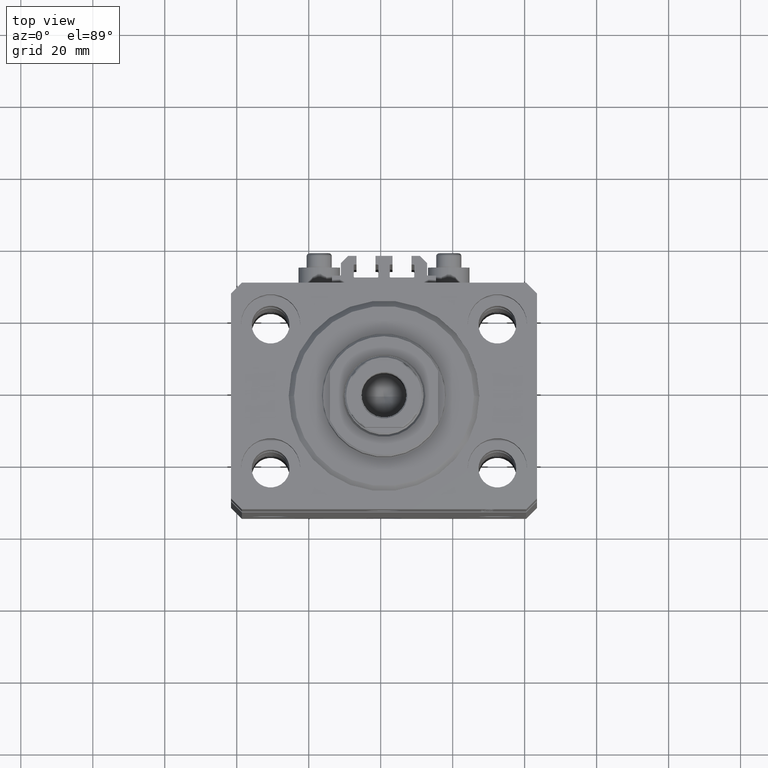
[diagram: clean part render]
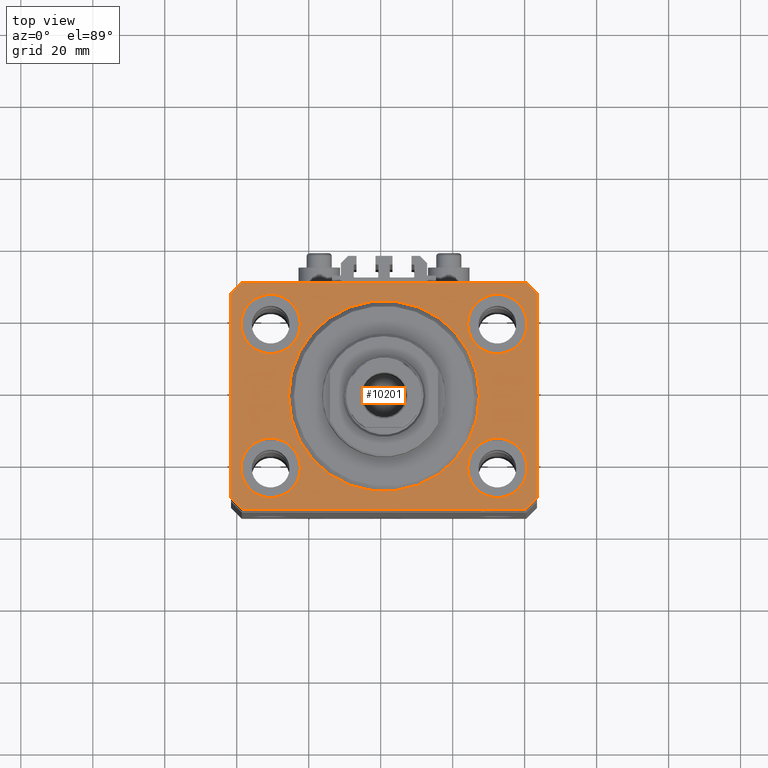
[diagram: same view with one face highlighted and labeled with its STEP entity id]
A machine part, top view. The second image highlights one B-rep face of the part: STEP entity #10201.
In plain terms, the highlighted planar face has unit normal (0, 0, 1).
Its self-contained STEP definition (entity closure, byte-faithful):
#136 = EDGE_CURVE ( 'NONE', #38953, #19884, #35406, .T. ) ;
#628 = EDGE_CURVE ( 'NONE', #9262, #30625, #28419, .T. ) ;
#698 = VERTEX_POINT ( 'NONE', #37336 ) ;
#746 = VECTOR ( 'NONE', #24726, 1000.000000000000000 ) ;
#1323 = AXIS2_PLACEMENT_3D ( 'NONE', #46630, #40030, #32746 ) ;
#1625 = CARTESIAN_POINT ( 'NONE',  ( 31.50000000000000000, -20.00000000000000000, 0.000000000000000000 ) ) ;
#1717 = CARTESIAN_POINT ( 'NONE',  ( -42.50000000000000000, 28.50000000000000000, 0.000000000000000000 ) ) ;
#1783 = DIRECTION ( 'NONE',  ( 1.000000000000000000, 0.000000000000000000, 0.000000000000000000 ) ) ;
#1928 = LINE ( 'NONE', #9239, #36203 ) ;
#1996 = AXIS2_PLACEMENT_3D ( 'NONE', #7180, #47554, #10353 ) ;
#2219 = VERTEX_POINT ( 'NONE', #18983 ) ;
#2359 = CARTESIAN_POINT ( 'NONE',  ( -42.50000000000000000, -28.50000000000000000, 0.000000000000000000 ) ) ;
#2414 = CARTESIAN_POINT ( 'NONE',  ( -42.50000000000000000, 28.50000000000000000, 0.000000000000000000 ) ) ;
#3054 = CARTESIAN_POINT ( 'NONE',  ( -31.50000000000000000, -20.00000000000000000, 0.000000000000000000 ) ) ;
#3258 = LINE ( 'NONE', #13517, #35400 ) ;
#4045 = EDGE_CURVE ( 'NONE', #2219, #34801, #41517, .T. ) ;
#4282 = AXIS2_PLACEMENT_3D ( 'NONE', #16449, #34701, #13529 ) ;
#4837 = DIRECTION ( 'NONE',  ( 1.000000000000000000, 0.000000000000000000, 0.000000000000000000 ) ) ;
#4979 = EDGE_LOOP ( 'NONE', ( #18984, #31211 ) ) ;
#5099 = CIRCLE ( 'NONE', #4282, 8.249999999999992895 ) ;
#5193 = CIRCLE ( 'NONE', #1323, 8.249999999999992895 ) ;
#5458 = EDGE_LOOP ( 'NONE', ( #38233, #42775 ) ) ;
#5701 = ORIENTED_EDGE ( 'NONE', *, *, #628, .F. ) ;
#5742 = EDGE_LOOP ( 'NONE', ( #14436, #44609 ) ) ;
#6014 = LINE ( 'NONE', #2359, #746 ) ;
#6138 = EDGE_CURVE ( 'NONE', #33075, #17362, #30519, .T. ) ;
#6682 = AXIS2_PLACEMENT_3D ( 'NONE', #17817, #32186, #21217 ) ;
#6954 = CIRCLE ( 'NONE', #17854, 8.250000000000000000 ) ;
#7103 = VERTEX_POINT ( 'NONE', #44895 ) ;
#7180 = CARTESIAN_POINT ( 'NONE',  ( 0.000000000000000000, 0.000000000000000000, 0.000000000000000000 ) ) ;
#7654 = ORIENTED_EDGE ( 'NONE', *, *, #4045, .T. ) ;
#7656 = CARTESIAN_POINT ( 'NONE',  ( 26.50000000000000355, 0.000000000000000000, 0.000000000000000000 ) ) ;
#7724 = EDGE_CURVE ( 'NONE', #11827, #45693, #36161, .T. ) ;
#7799 = FACE_BOUND ( 'NONE', #5458, .T. ) ;
#7828 = EDGE_LOOP ( 'NONE', ( #45805, #24117, #10733, #27637, #47227, #8619, #7654, #42424 ) ) ;
#7996 = DIRECTION ( 'NONE',  ( 0.000000000000000000, 0.000000000000000000, 1.000000000000000000 ) ) ;
#8518 = FACE_OUTER_BOUND ( 'NONE', #7828, .T. ) ;
#8619 = ORIENTED_EDGE ( 'NONE', *, *, #14311, .T. ) ;
#8668 = AXIS2_PLACEMENT_3D ( 'NONE', #9572, #24870, #1783 ) ;
#8802 = CARTESIAN_POINT ( 'NONE',  ( -31.50000000000000000, 20.00000000000000000, 0.000000000000000000 ) ) ;
#9239 = CARTESIAN_POINT ( 'NONE',  ( 39.50000000000000711, -31.50000000000000000, 0.000000000000000000 ) ) ;
#9253 = VECTOR ( 'NONE', #22174, 1000.000000000000000 ) ;
#9262 = VERTEX_POINT ( 'NONE', #40379 ) ;
#9509 = LINE ( 'NONE', #1717, #18545 ) ;
#9572 = CARTESIAN_POINT ( 'NONE',  ( -31.50000000000000000, 20.00000000000000000, 0.000000000000000000 ) ) ;
#9996 = VERTEX_POINT ( 'NONE', #42607 ) ;
#10201 = ADVANCED_FACE ( 'NONE', ( #44774, #45016, #22618, #7799, #37942, #8518 ), #22853, .T. ) ;
#10353 = DIRECTION ( 'NONE',  ( 1.000000000000000000, 0.000000000000000000, 0.000000000000000000 ) ) ;
#10733 = ORIENTED_EDGE ( 'NONE', *, *, #26820, .T. ) ;
#11699 = CARTESIAN_POINT ( 'NONE',  ( 0.000000000000000000, 0.000000000000000000, 0.000000000000000000 ) ) ;
#11827 = VERTEX_POINT ( 'NONE', #27742 ) ;
#12414 = EDGE_CURVE ( 'NONE', #19884, #38953, #5099, .T. ) ;
#12844 = CARTESIAN_POINT ( 'NONE',  ( -23.25000000000000000, 20.00000000000000000, 0.000000000000000000 ) ) ;
#13305 = DIRECTION ( 'NONE',  ( 0.000000000000000000, 0.000000000000000000, 1.000000000000000000 ) ) ;
#13517 = CARTESIAN_POINT ( 'NONE',  ( 42.50000000000051870, 28.49999999999995381, 0.000000000000000000 ) ) ;
#13529 = DIRECTION ( 'NONE',  ( 1.000000000000000000, 0.000000000000000000, 0.000000000000000000 ) ) ;
#14311 = EDGE_CURVE ( 'NONE', #24537, #2219, #1928, .T. ) ;
#14436 = ORIENTED_EDGE ( 'NONE', *, *, #12414, .F. ) ;
#15572 = VECTOR ( 'NONE', #4837, 1000.000000000000000 ) ;
#15643 = VERTEX_POINT ( 'NONE', #12844 ) ;
#15792 = VECTOR ( 'NONE', #24959, 1000.000000000000000 ) ;
#16227 = CARTESIAN_POINT ( 'NONE',  ( 39.74999999999999289, -20.00000000000000000, 0.000000000000000000 ) ) ;
#16398 = VERTEX_POINT ( 'NONE', #17743 ) ;
#16449 = CARTESIAN_POINT ( 'NONE',  ( 31.50000000000000000, 20.00000000000001066, 0.000000000000000000 ) ) ;
#16481 = CIRCLE ( 'NONE', #43647, 8.250000000000000000 ) ;
#16562 = DIRECTION ( 'NONE',  ( 0.000000000000000000, -1.000000000000000000, 0.000000000000000000 ) ) ;
#16847 = EDGE_CURVE ( 'NONE', #34801, #29800, #3258, .T. ) ;
#17362 = VERTEX_POINT ( 'NONE', #41627 ) ;
#17488 = EDGE_CURVE ( 'NONE', #30625, #9262, #33884, .T. ) ;
#17743 = CARTESIAN_POINT ( 'NONE',  ( -39.50000000000000711, -31.50000000000000000, 0.000000000000000000 ) ) ;
#17817 = CARTESIAN_POINT ( 'NONE',  ( 31.50000000000000000, 20.00000000000001066, 0.000000000000000000 ) ) ;
#17854 = AXIS2_PLACEMENT_3D ( 'NONE', #29663, #7996, #33793 ) ;
#18410 = VERTEX_POINT ( 'NONE', #42356 ) ;
#18545 = VECTOR ( 'NONE', #16562, 1000.000000000000000 ) ;
#18983 = CARTESIAN_POINT ( 'NONE',  ( 42.50000000000000711, -28.50000000000000355, 0.000000000000000000 ) ) ;
#18984 = ORIENTED_EDGE ( 'NONE', *, *, #25838, .F. ) ;
#19688 = EDGE_CURVE ( 'NONE', #17362, #33075, #5193, .T. ) ;
#19884 = VERTEX_POINT ( 'NONE', #34615 ) ;
#20061 = CARTESIAN_POINT ( 'NONE',  ( 42.50000000000051870, 28.49999999999995381, 0.000000000000000000 ) ) ;
#20153 = CARTESIAN_POINT ( 'NONE',  ( -39.50000000000000711, -31.50000000000000000, 0.000000000000000000 ) ) ;
#20264 = CARTESIAN_POINT ( 'NONE',  ( 39.50000000000056843, 31.50000000000000000, 0.000000000000000000 ) ) ;
#21217 = DIRECTION ( 'NONE',  ( 1.000000000000000000, 0.000000000000000000, 0.000000000000000000 ) ) ;
#22174 = DIRECTION ( 'NONE',  ( -1.000000000000000000, 0.000000000000000000, 0.000000000000000000 ) ) ;
#22618 = FACE_BOUND ( 'NONE', #5742, .T. ) ;
#22853 = PLANE ( 'NONE',  #25959 ) ;
#22892 = DIRECTION ( 'NONE',  ( 0.000000000000000000, 0.000000000000000000, 1.000000000000000000 ) ) ;
#23333 = DIRECTION ( 'NONE',  ( 0.000000000000000000, 0.000000000000000000, 1.000000000000000000 ) ) ;
#24117 = ORIENTED_EDGE ( 'NONE', *, *, #7724, .T. ) ;
#24537 = VERTEX_POINT ( 'NONE', #33967 ) ;
#24726 = DIRECTION ( 'NONE',  ( 0.7071067811865471286, -0.7071067811865479058, 0.000000000000000000 ) ) ;
#24870 = DIRECTION ( 'NONE',  ( 0.000000000000000000, 0.000000000000000000, 1.000000000000000000 ) ) ;
#24959 = DIRECTION ( 'NONE',  ( -0.7071067811865471286, -0.7071067811865479058, 0.000000000000000000 ) ) ;
#25838 = EDGE_CURVE ( 'NONE', #9996, #698, #6954, .T. ) ;
#25842 = CARTESIAN_POINT ( 'NONE',  ( 39.50000000000056843, 31.50000000000000000, 0.000000000000000000 ) ) ;
#25959 = AXIS2_PLACEMENT_3D ( 'NONE', #11699, #23333, #37706 ) ;
#25960 = DIRECTION ( 'NONE',  ( 1.000000000000000000, 0.000000000000000000, 0.000000000000000000 ) ) ;
#26820 = EDGE_CURVE ( 'NONE', #45693, #18410, #9509, .T. ) ;
#27034 = CIRCLE ( 'NONE', #30137, 8.250000000000000000 ) ;
#27161 = DIRECTION ( 'NONE',  ( 8.886653596232072440E-15, 1.000000000000000000, 0.000000000000000000 ) ) ;
#27637 = ORIENTED_EDGE ( 'NONE', *, *, #37927, .T. ) ;
#27649 = DIRECTION ( 'NONE',  ( 1.000000000000000000, 0.000000000000000000, 0.000000000000000000 ) ) ;
#27742 = CARTESIAN_POINT ( 'NONE',  ( -39.50000000000000711, 31.50000000000000000, 0.000000000000000000 ) ) ;
#28077 = EDGE_CURVE ( 'NONE', #29800, #11827, #37027, .T. ) ;
#28126 = DIRECTION ( 'NONE',  ( 1.000000000000000000, 0.000000000000000000, 0.000000000000000000 ) ) ;
#28233 = DIRECTION ( 'NONE',  ( 0.000000000000000000, 0.000000000000000000, 1.000000000000000000 ) ) ;
#28415 = AXIS2_PLACEMENT_3D ( 'NONE', #42825, #28233, #25960 ) ;
#28419 = CIRCLE ( 'NONE', #1996, 26.50000000000000355 ) ;
#28483 = ORIENTED_EDGE ( 'NONE', *, *, #19688, .F. ) ;
#29663 = CARTESIAN_POINT ( 'NONE',  ( -31.50000000000000000, -20.00000000000000000, 0.000000000000000000 ) ) ;
#29800 = VERTEX_POINT ( 'NONE', #20264 ) ;
#30137 = AXIS2_PLACEMENT_3D ( 'NONE', #3054, #13305, #28126 ) ;
#30519 = CIRCLE ( 'NONE', #46042, 8.249999999999992895 ) ;
#30625 = VERTEX_POINT ( 'NONE', #7656 ) ;
#30921 = ORIENTED_EDGE ( 'NONE', *, *, #17488, .F. ) ;
#31009 = EDGE_CURVE ( 'NONE', #16398, #24537, #34278, .T. ) ;
#31078 = ORIENTED_EDGE ( 'NONE', *, *, #6138, .F. ) ;
#31207 = CIRCLE ( 'NONE', #8668, 8.250000000000000000 ) ;
#31211 = ORIENTED_EDGE ( 'NONE', *, *, #33217, .F. ) ;
#31772 = VECTOR ( 'NONE', #27161, 1000.000000000000000 ) ;
#31850 = DIRECTION ( 'NONE',  ( 0.7071067811865483499, 0.7071067811865466846, 0.000000000000000000 ) ) ;
#32186 = DIRECTION ( 'NONE',  ( 0.000000000000000000, 0.000000000000000000, 1.000000000000000000 ) ) ;
#32746 = DIRECTION ( 'NONE',  ( 1.000000000000000000, 0.000000000000000000, 0.000000000000000000 ) ) ;
#33075 = VERTEX_POINT ( 'NONE', #16227 ) ;
#33217 = EDGE_CURVE ( 'NONE', #698, #9996, #27034, .T. ) ;
#33751 = CARTESIAN_POINT ( 'NONE',  ( 42.50000000000000711, -28.50000000000000355, 0.000000000000000000 ) ) ;
#33793 = DIRECTION ( 'NONE',  ( 1.000000000000000000, 0.000000000000000000, 0.000000000000000000 ) ) ;
#33884 = CIRCLE ( 'NONE', #28415, 26.50000000000000355 ) ;
#33967 = CARTESIAN_POINT ( 'NONE',  ( 39.50000000000000711, -31.50000000000000000, 0.000000000000000000 ) ) ;
#34278 = LINE ( 'NONE', #20153, #15572 ) ;
#34615 = CARTESIAN_POINT ( 'NONE',  ( 39.74999999999999289, 20.00000000000001066, 0.000000000000000000 ) ) ;
#34701 = DIRECTION ( 'NONE',  ( 0.000000000000000000, 0.000000000000000000, 1.000000000000000000 ) ) ;
#34801 = VERTEX_POINT ( 'NONE', #20061 ) ;
#35400 = VECTOR ( 'NONE', #35877, 1000.000000000000114 ) ;
#35406 = CIRCLE ( 'NONE', #6682, 8.249999999999992895 ) ;
#35877 = DIRECTION ( 'NONE',  ( -0.7071067811865356934, 0.7071067811865594521, 0.000000000000000000 ) ) ;
#36161 = LINE ( 'NONE', #46636, #15792 ) ;
#36203 = VECTOR ( 'NONE', #31850, 1000.000000000000000 ) ;
#37027 = LINE ( 'NONE', #25842, #9253 ) ;
#37336 = CARTESIAN_POINT ( 'NONE',  ( -39.75000000000000000, -20.00000000000000000, 0.000000000000000000 ) ) ;
#37706 = DIRECTION ( 'NONE',  ( 1.000000000000000000, 0.000000000000000000, -0.000000000000000000 ) ) ;
#37747 = DIRECTION ( 'NONE',  ( 1.000000000000000000, 0.000000000000000000, 0.000000000000000000 ) ) ;
#37840 = CARTESIAN_POINT ( 'NONE',  ( 23.25000000000000355, 20.00000000000001066, 0.000000000000000000 ) ) ;
#37927 = EDGE_CURVE ( 'NONE', #18410, #16398, #6014, .T. ) ;
#37942 = FACE_BOUND ( 'NONE', #45406, .T. ) ;
#38233 = ORIENTED_EDGE ( 'NONE', *, *, #43226, .F. ) ;
#38581 = EDGE_LOOP ( 'NONE', ( #31078, #28483 ) ) ;
#38953 = VERTEX_POINT ( 'NONE', #37840 ) ;
#40030 = DIRECTION ( 'NONE',  ( 0.000000000000000000, 0.000000000000000000, 1.000000000000000000 ) ) ;
#40379 = CARTESIAN_POINT ( 'NONE',  ( -26.50000000000000355, 3.245314017740486554E-15, 0.000000000000000000 ) ) ;
#41517 = LINE ( 'NONE', #33751, #31772 ) ;
#41627 = CARTESIAN_POINT ( 'NONE',  ( 23.25000000000000355, -20.00000000000000000, 0.000000000000000000 ) ) ;
#42105 = EDGE_CURVE ( 'NONE', #7103, #15643, #31207, .T. ) ;
#42356 = CARTESIAN_POINT ( 'NONE',  ( -42.50000000000000000, -28.50000000000000000, 0.000000000000000000 ) ) ;
#42424 = ORIENTED_EDGE ( 'NONE', *, *, #16847, .T. ) ;
#42607 = CARTESIAN_POINT ( 'NONE',  ( -23.25000000000000000, -20.00000000000000000, 0.000000000000000000 ) ) ;
#42775 = ORIENTED_EDGE ( 'NONE', *, *, #42105, .F. ) ;
#42825 = CARTESIAN_POINT ( 'NONE',  ( 0.000000000000000000, 0.000000000000000000, 0.000000000000000000 ) ) ;
#43226 = EDGE_CURVE ( 'NONE', #15643, #7103, #16481, .T. ) ;
#43647 = AXIS2_PLACEMENT_3D ( 'NONE', #8802, #22892, #37747 ) ;
#44609 = ORIENTED_EDGE ( 'NONE', *, *, #136, .F. ) ;
#44774 = FACE_BOUND ( 'NONE', #4979, .T. ) ;
#44895 = CARTESIAN_POINT ( 'NONE',  ( -39.75000000000000000, 20.00000000000000000, 0.000000000000000000 ) ) ;
#45016 = FACE_BOUND ( 'NONE', #38581, .T. ) ;
#45406 = EDGE_LOOP ( 'NONE', ( #30921, #5701 ) ) ;
#45693 = VERTEX_POINT ( 'NONE', #2414 ) ;
#45805 = ORIENTED_EDGE ( 'NONE', *, *, #28077, .T. ) ;
#46042 = AXIS2_PLACEMENT_3D ( 'NONE', #1625, #46146, #27649 ) ;
#46146 = DIRECTION ( 'NONE',  ( 0.000000000000000000, 0.000000000000000000, 1.000000000000000000 ) ) ;
#46630 = CARTESIAN_POINT ( 'NONE',  ( 31.50000000000000000, -20.00000000000000000, 0.000000000000000000 ) ) ;
#46636 = CARTESIAN_POINT ( 'NONE',  ( -39.50000000000000711, 31.50000000000000000, 0.000000000000000000 ) ) ;
#47227 = ORIENTED_EDGE ( 'NONE', *, *, #31009, .T. ) ;
#47554 = DIRECTION ( 'NONE',  ( 0.000000000000000000, 0.000000000000000000, 1.000000000000000000 ) ) ;